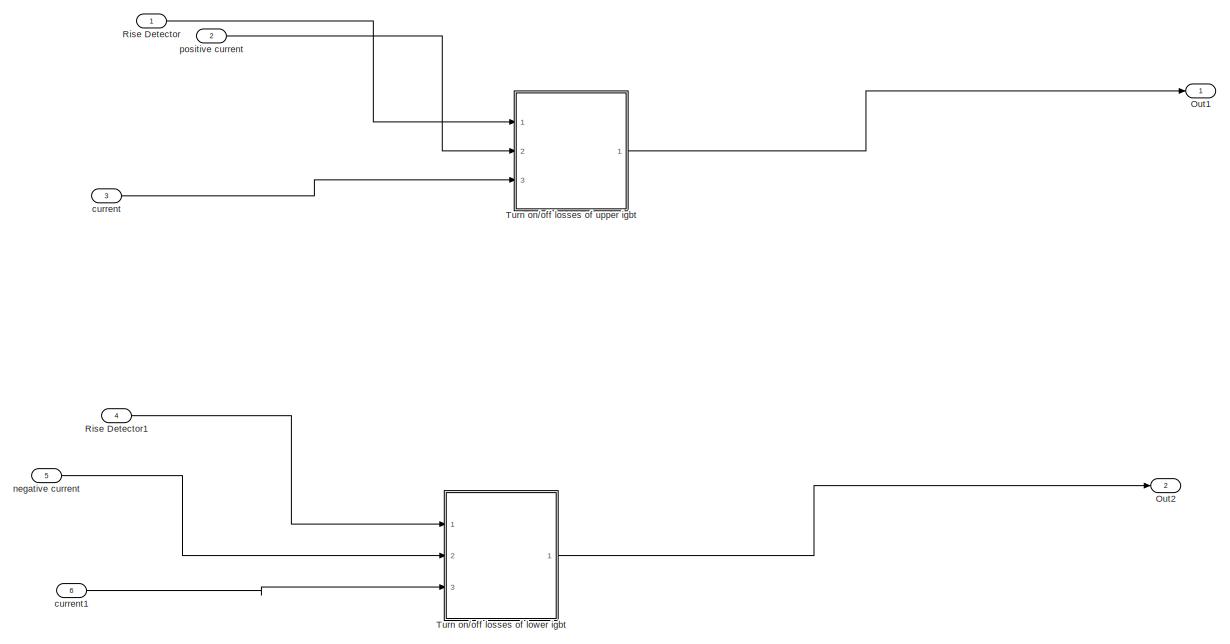
[diagram: root canvas - part 1/2, left side, full height]
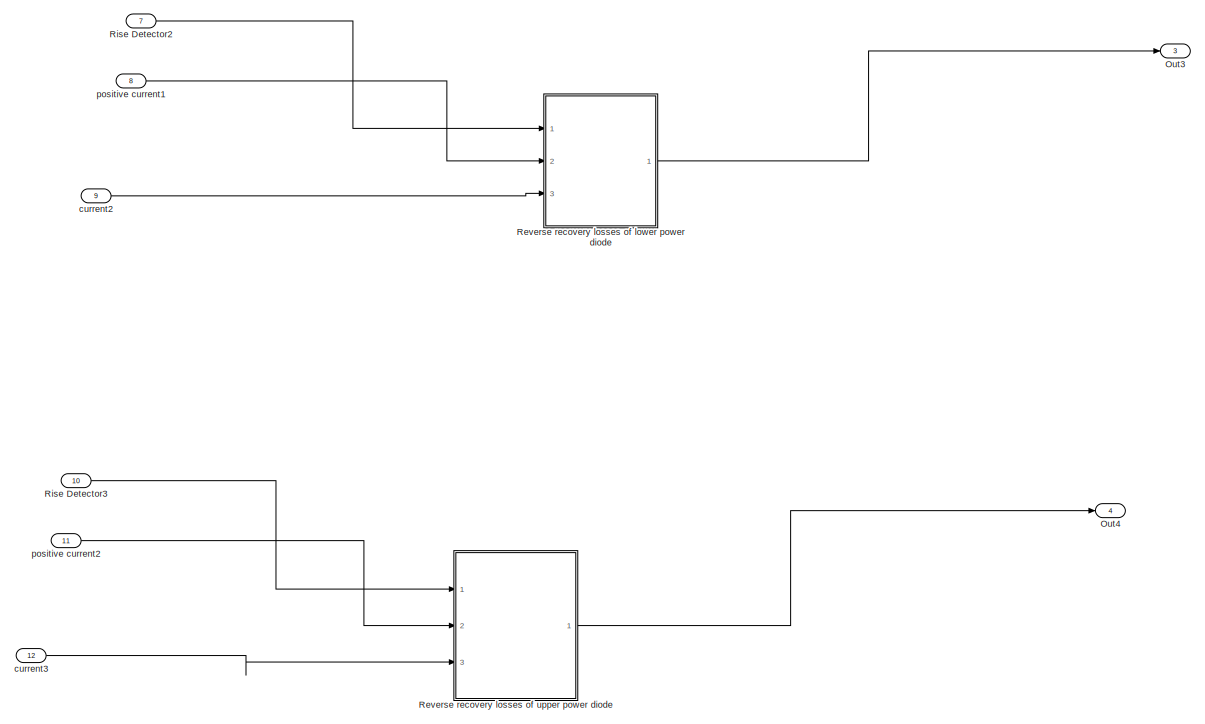
[diagram: root canvas - part 2/2, right side, full height]
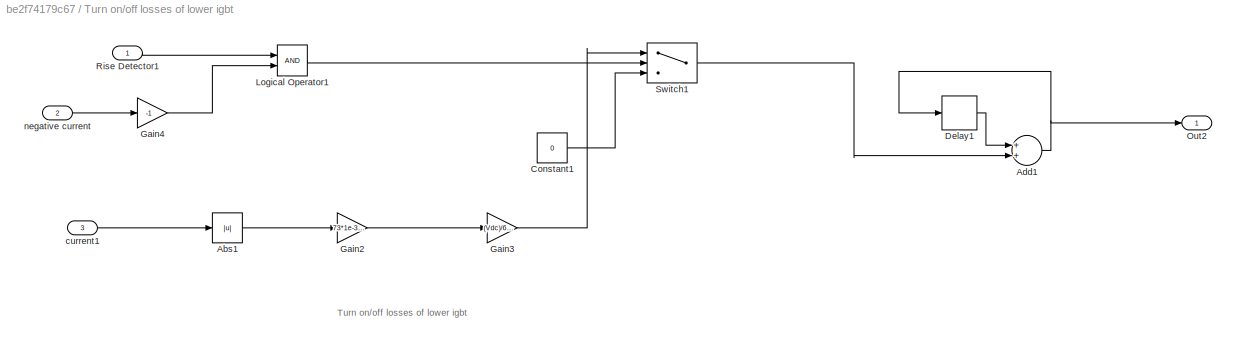
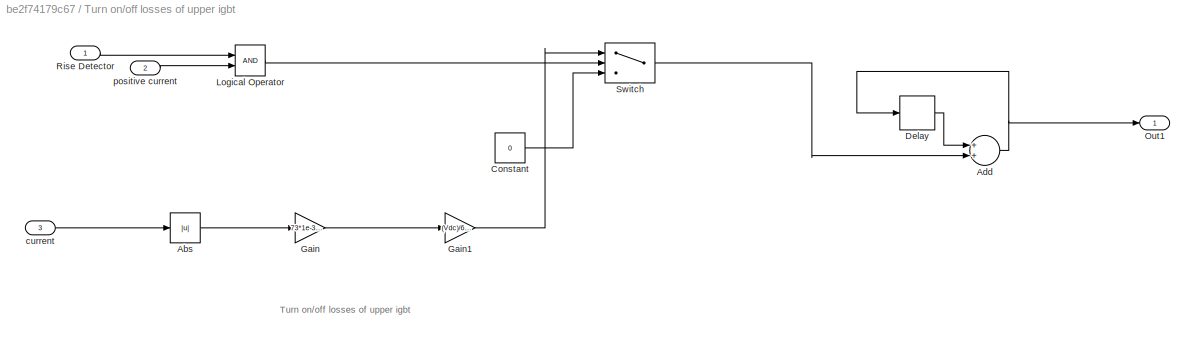
MODEL slx_be2f74179c67
KIND model
CONFIG AbsTol = auto
CONFIG FixedStep = auto
CONFIG MaxStep = auto
CONFIG MinStep = auto
CONFIG RelTol = 1e-3
CONFIG SampleTimeConstraint = Unconstrained
CONFIG Solver = ode45
CONFIG SolverMode = Auto
CONFIG SolverName = ode45
CONFIG StartTime = 0.0
CONFIG StopTime = 10.0
BLOCK [Outport] Out1
  IconDisplay = Port number
BLOCK [Outport] Out2
  IconDisplay = Port number
  Port = 2
BLOCK [Outport] Out3
  IconDisplay = Port number
  Port = 3
BLOCK [Outport] Out4
  IconDisplay = Port number
  Port = 4
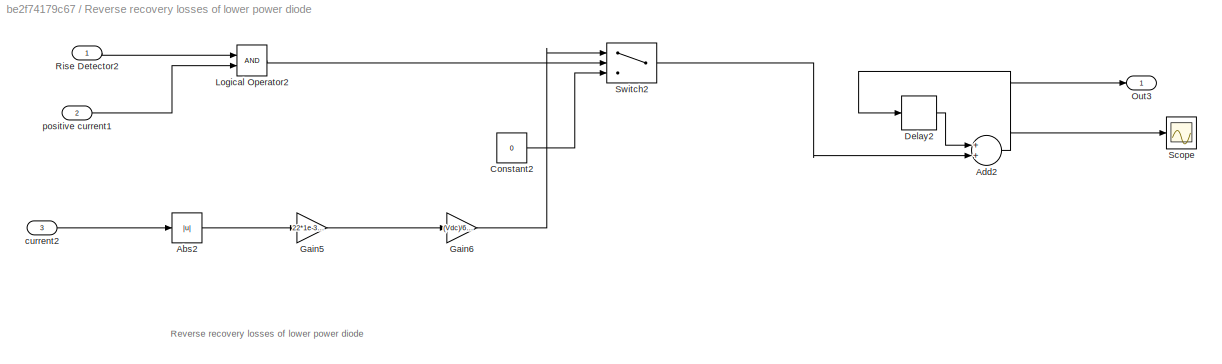
BLOCK [SubSystem] Reverse recovery losses of lower power diode 
  Ports = [3, 1]
  RequestExecContextInheritance = off
BLOCK [Abs] Reverse recovery losses of lower power diode /Abs2
  SaturateOnIntegerOverflow = off
BLOCK [Sum] Reverse recovery losses of lower power diode /Add2
  InputSameDT = off
  OutDataTypeStr = Inherit: Inherit via internal rule
  Ports = [2, 1]
  SaturateOnIntegerOverflow = off
BLOCK [Constant] Reverse recovery losses of lower power diode /Constant2
  Value = 0
BLOCK [Delay] Reverse recovery losses of lower power diode /Delay2
  DelayLength = 1
  InitialCondition = 0
  InputPortMap = u0
  Ports = [1, 1]
BLOCK [Gain] Reverse recovery losses of lower power diode /Gain5
  Gain = 22*1e-3/300
  OutDataTypeStr = Inherit: Inherit via internal rule
  ParamDataTypeStr = Inherit: Inherit via internal rule
  SaturateOnIntegerOverflow = off
BLOCK [Gain] Reverse recovery losses of lower power diode /Gain6
  Gain = (Vdc)/600
  OutDataTypeStr = Inherit: Inherit via internal rule
  ParamDataTypeStr = Inherit: Inherit via internal rule
  SaturateOnIntegerOverflow = off
BLOCK [Logic] Reverse recovery losses of lower power diode /Logical Operator2
  AllPortsSameDT = off
  OutDataTypeStr = boolean
  Ports = [2, 1]
BLOCK [Outport] Reverse recovery losses of lower power diode /Out3
  IconDisplay = Port number
BLOCK [Inport] Reverse recovery losses of lower power diode /Rise Detector2
  IconDisplay = Port number
BLOCK [Scope] Reverse recovery losses of lower power diode /Scope
  Floating = off
  NumInputPorts = 1
  Ports = [1]
BLOCK [Switch] Reverse recovery losses of lower power diode /Switch2
  Criteria = u2 > Threshold
  InputSameDT = off
  SaturateOnIntegerOverflow = off
BLOCK [Inport] Reverse recovery losses of lower power diode /current2
  IconDisplay = Port number
  Port = 3
BLOCK [Inport] Reverse recovery losses of lower power diode /positive current1
  IconDisplay = Port number
  Port = 2
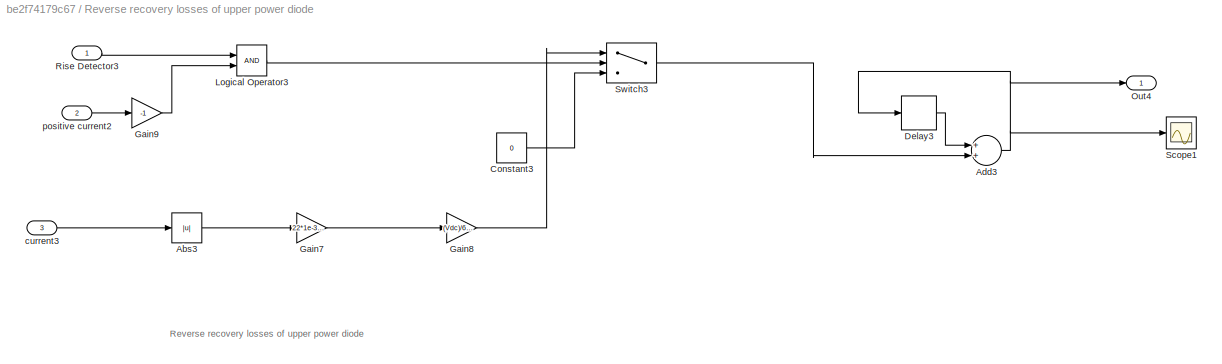
BLOCK [SubSystem] Reverse recovery losses of upper power diode 
  Ports = [3, 1]
  RequestExecContextInheritance = off
BLOCK [Abs] Reverse recovery losses of upper power diode /Abs3
  SaturateOnIntegerOverflow = off
BLOCK [Sum] Reverse recovery losses of upper power diode /Add3
  InputSameDT = off
  OutDataTypeStr = Inherit: Inherit via internal rule
  Ports = [2, 1]
  SaturateOnIntegerOverflow = off
BLOCK [Constant] Reverse recovery losses of upper power diode /Constant3
  Value = 0
BLOCK [Delay] Reverse recovery losses of upper power diode /Delay3
  DelayLength = 1
  InitialCondition = 0
  InputPortMap = u0
  Ports = [1, 1]
BLOCK [Gain] Reverse recovery losses of upper power diode /Gain7
  Gain = 22*1e-3/300
  OutDataTypeStr = Inherit: Inherit via internal rule
  ParamDataTypeStr = Inherit: Inherit via internal rule
  SaturateOnIntegerOverflow = off
BLOCK [Gain] Reverse recovery losses of upper power diode /Gain8
  Gain = (Vdc)/600
  OutDataTypeStr = Inherit: Inherit via internal rule
  ParamDataTypeStr = Inherit: Inherit via internal rule
  SaturateOnIntegerOverflow = off
BLOCK [Gain] Reverse recovery losses of upper power diode /Gain9
  Gain = -1
  OutDataTypeStr = Inherit: Inherit via internal rule
  ParamDataTypeStr = Inherit: Inherit via internal rule
  SaturateOnIntegerOverflow = off
BLOCK [Logic] Reverse recovery losses of upper power diode /Logical Operator3
  AllPortsSameDT = off
  OutDataTypeStr = boolean
  Ports = [2, 1]
BLOCK [Outport] Reverse recovery losses of upper power diode /Out4
  IconDisplay = Port number
BLOCK [Inport] Reverse recovery losses of upper power diode /Rise Detector3
  IconDisplay = Port number
BLOCK [Scope] Reverse recovery losses of upper power diode /Scope1
  Floating = off
  NumInputPorts = 1
  Ports = [1]
  SaveName = ScopeData1
BLOCK [Switch] Reverse recovery losses of upper power diode /Switch3
  Criteria = u2 > Threshold
  InputSameDT = off
  SaturateOnIntegerOverflow = off
BLOCK [Inport] Reverse recovery losses of upper power diode /current3
  IconDisplay = Port number
  Port = 3
BLOCK [Inport] Reverse recovery losses of upper power diode /positive current2
  IconDisplay = Port number
  Port = 2
BLOCK [Inport] Rise Detector
  IconDisplay = Port number
BLOCK [Inport] Rise Detector1
  IconDisplay = Port number
  Port = 4
BLOCK [Inport] Rise Detector2
  IconDisplay = Port number
  Port = 7
BLOCK [Inport] Rise Detector3
  IconDisplay = Port number
  Port = 10
BLOCK [SubSystem] Turn on//off losses of lower igbt 
  Ports = [3, 1]
  RequestExecContextInheritance = off
BLOCK [Abs] Turn on//off losses of lower igbt /Abs1
  SaturateOnIntegerOverflow = off
BLOCK [Sum] Turn on//off losses of lower igbt /Add1
  InputSameDT = off
  OutDataTypeStr = Inherit: Inherit via internal rule
  Ports = [2, 1]
  SaturateOnIntegerOverflow = off
BLOCK [Constant] Turn on//off losses of lower igbt /Constant1
  Value = 0
BLOCK [Delay] Turn on//off losses of lower igbt /Delay1
  DelayLength = 1
  InitialCondition = 0
  InputPortMap = u0
  Ports = [1, 1]
BLOCK [Gain] Turn on//off losses of lower igbt /Gain2
  Gain = 73*1e-3/300
  OutDataTypeStr = Inherit: Inherit via internal rule
  ParamDataTypeStr = Inherit: Inherit via internal rule
  SaturateOnIntegerOverflow = off
BLOCK [Gain] Turn on//off losses of lower igbt /Gain3
  Gain = (Vdc)/600
  OutDataTypeStr = Inherit: Inherit via internal rule
  ParamDataTypeStr = Inherit: Inherit via internal rule
  SaturateOnIntegerOverflow = off
BLOCK [Gain] Turn on//off losses of lower igbt /Gain4
  Gain = -1
  OutDataTypeStr = Inherit: Inherit via internal rule
  ParamDataTypeStr = Inherit: Inherit via internal rule
  SaturateOnIntegerOverflow = off
BLOCK [Logic] Turn on//off losses of lower igbt /Logical Operator1
  AllPortsSameDT = off
  OutDataTypeStr = boolean
  Ports = [2, 1]
BLOCK [Outport] Turn on//off losses of lower igbt /Out2
  IconDisplay = Port number
BLOCK [Inport] Turn on//off losses of lower igbt /Rise Detector1
  IconDisplay = Port number
BLOCK [Switch] Turn on//off losses of lower igbt /Switch1
  Criteria = u2 > Threshold
  InputSameDT = off
  SaturateOnIntegerOverflow = off
BLOCK [Inport] Turn on//off losses of lower igbt /current1
  IconDisplay = Port number
  Port = 3
BLOCK [Inport] Turn on//off losses of lower igbt /negative current
  IconDisplay = Port number
  Port = 2
BLOCK [SubSystem] Turn on//off losses of upper igbt 
  Ports = [3, 1]
  RequestExecContextInheritance = off
BLOCK [Abs] Turn on//off losses of upper igbt /Abs
  SaturateOnIntegerOverflow = off
BLOCK [Sum] Turn on//off losses of upper igbt /Add
  InputSameDT = off
  OutDataTypeStr = Inherit: Inherit via internal rule
  Ports = [2, 1]
  SaturateOnIntegerOverflow = off
BLOCK [Constant] Turn on//off losses of upper igbt /Constant
  Value = 0
BLOCK [Delay] Turn on//off losses of upper igbt /Delay
  DelayLength = 1
  InitialCondition = 0
  InputPortMap = u0
  Ports = [1, 1]
BLOCK [Gain] Turn on//off losses of upper igbt /Gain
  Gain = 73*1e-3/300
  OutDataTypeStr = Inherit: Inherit via internal rule
  ParamDataTypeStr = Inherit: Inherit via internal rule
  SaturateOnIntegerOverflow = off
BLOCK [Gain] Turn on//off losses of upper igbt /Gain1
  Gain = (Vdc)/600
  OutDataTypeStr = Inherit: Inherit via internal rule
  ParamDataTypeStr = Inherit: Inherit via internal rule
  SaturateOnIntegerOverflow = off
BLOCK [Logic] Turn on//off losses of upper igbt /Logical Operator
  AllPortsSameDT = off
  OutDataTypeStr = boolean
  Ports = [2, 1]
BLOCK [Outport] Turn on//off losses of upper igbt /Out1
  IconDisplay = Port number
BLOCK [Inport] Turn on//off losses of upper igbt /Rise Detector
  IconDisplay = Port number
BLOCK [Switch] Turn on//off losses of upper igbt /Switch
  Criteria = u2 > Threshold
  InputSameDT = off
  SaturateOnIntegerOverflow = off
BLOCK [Inport] Turn on//off losses of upper igbt /current
  IconDisplay = Port number
  Port = 3
BLOCK [Inport] Turn on//off losses of upper igbt /positive current
  IconDisplay = Port number
  Port = 2
BLOCK [Inport] current
  IconDisplay = Port number
  Port = 3
BLOCK [Inport] current1
  IconDisplay = Port number
  Port = 6
BLOCK [Inport] current2
  IconDisplay = Port number
  Port = 9
BLOCK [Inport] current3
  IconDisplay = Port number
  Port = 12
BLOCK [Inport] negative current
  IconDisplay = Port number
  Port = 5
BLOCK [Inport] positive current
  IconDisplay = Port number
  Port = 2
BLOCK [Inport] positive current1
  IconDisplay = Port number
  Port = 8
BLOCK [Inport] positive current2
  IconDisplay = Port number
  Port = 11
ANNOTATION Reverse recovery losses of lower power diode : Reverse recovery losses of lower power diode
ANNOTATION Reverse recovery losses of upper power diode : Reverse recovery losses of upper power diode
ANNOTATION Turn on//off losses of lower igbt : Turn on/off losses of lower igbt
ANNOTATION Turn on//off losses of upper igbt : Turn on/off losses of upper igbt
LINE Reverse recovery losses of lower power diode /Abs2:1 -> Reverse recovery losses of lower power diode /Gain5:1
NET Reverse recovery losses of lower power diode /Add2:1 -> Reverse recovery losses of lower power diode /Delay2:1, Reverse recovery losses of lower power diode /Out3:1, Reverse recovery losses of lower power diode /Scope:1
LINE Reverse recovery losses of lower power diode /Constant2:1 -> Reverse recovery losses of lower power diode /Switch2:3
LINE Reverse recovery losses of lower power diode /Delay2:1 -> Reverse recovery losses of lower power diode /Add2:1
LINE Reverse recovery losses of lower power diode /Gain5:1 -> Reverse recovery losses of lower power diode /Gain6:1
LINE Reverse recovery losses of lower power diode /Gain6:1 -> Reverse recovery losses of lower power diode /Switch2:1
LINE Reverse recovery losses of lower power diode /Logical Operator2:1 -> Reverse recovery losses of lower power diode /Switch2:2
LINE Reverse recovery losses of lower power diode /Rise Detector2:1 -> Reverse recovery losses of lower power diode /Logical Operator2:1
LINE Reverse recovery losses of lower power diode /Switch2:1 -> Reverse recovery losses of lower power diode /Add2:2
LINE Reverse recovery losses of lower power diode /current2:1 -> Reverse recovery losses of lower power diode /Abs2:1
LINE Reverse recovery losses of lower power diode /positive current1:1 -> Reverse recovery losses of lower power diode /Logical Operator2:2
LINE Reverse recovery losses of lower power diode :1 -> Out3:1
LINE Reverse recovery losses of upper power diode /Abs3:1 -> Reverse recovery losses of upper power diode /Gain7:1
NET Reverse recovery losses of upper power diode /Add3:1 -> Reverse recovery losses of upper power diode /Delay3:1, Reverse recovery losses of upper power diode /Out4:1, Reverse recovery losses of upper power diode /Scope1:1
LINE Reverse recovery losses of upper power diode /Constant3:1 -> Reverse recovery losses of upper power diode /Switch3:3
LINE Reverse recovery losses of upper power diode /Delay3:1 -> Reverse recovery losses of upper power diode /Add3:1
LINE Reverse recovery losses of upper power diode /Gain7:1 -> Reverse recovery losses of upper power diode /Gain8:1
LINE Reverse recovery losses of upper power diode /Gain8:1 -> Reverse recovery losses of upper power diode /Switch3:1
LINE Reverse recovery losses of upper power diode /Gain9:1 -> Reverse recovery losses of upper power diode /Logical Operator3:2
LINE Reverse recovery losses of upper power diode /Logical Operator3:1 -> Reverse recovery losses of upper power diode /Switch3:2
LINE Reverse recovery losses of upper power diode /Rise Detector3:1 -> Reverse recovery losses of upper power diode /Logical Operator3:1
LINE Reverse recovery losses of upper power diode /Switch3:1 -> Reverse recovery losses of upper power diode /Add3:2
LINE Reverse recovery losses of upper power diode /current3:1 -> Reverse recovery losses of upper power diode /Abs3:1
LINE Reverse recovery losses of upper power diode /positive current2:1 -> Reverse recovery losses of upper power diode /Gain9:1
LINE Reverse recovery losses of upper power diode :1 -> Out4:1
LINE Rise Detector1:1 -> Turn on//off losses of lower igbt :1
LINE Rise Detector2:1 -> Reverse recovery losses of lower power diode :1
LINE Rise Detector3:1 -> Reverse recovery losses of upper power diode :1
LINE Rise Detector:1 -> Turn on//off losses of upper igbt :1
LINE Turn on//off losses of lower igbt /Abs1:1 -> Turn on//off losses of lower igbt /Gain2:1
NET Turn on//off losses of lower igbt /Add1:1 -> Turn on//off losses of lower igbt /Delay1:1, Turn on//off losses of lower igbt /Out2:1
LINE Turn on//off losses of lower igbt /Constant1:1 -> Turn on//off losses of lower igbt /Switch1:3
LINE Turn on//off losses of lower igbt /Delay1:1 -> Turn on//off losses of lower igbt /Add1:1
LINE Turn on//off losses of lower igbt /Gain2:1 -> Turn on//off losses of lower igbt /Gain3:1
LINE Turn on//off losses of lower igbt /Gain3:1 -> Turn on//off losses of lower igbt /Switch1:1
LINE Turn on//off losses of lower igbt /Gain4:1 -> Turn on//off losses of lower igbt /Logical Operator1:2
LINE Turn on//off losses of lower igbt /Logical Operator1:1 -> Turn on//off losses of lower igbt /Switch1:2
LINE Turn on//off losses of lower igbt /Rise Detector1:1 -> Turn on//off losses of lower igbt /Logical Operator1:1
LINE Turn on//off losses of lower igbt /Switch1:1 -> Turn on//off losses of lower igbt /Add1:2
LINE Turn on//off losses of lower igbt /current1:1 -> Turn on//off losses of lower igbt /Abs1:1
LINE Turn on//off losses of lower igbt /negative current:1 -> Turn on//off losses of lower igbt /Gain4:1
LINE Turn on//off losses of lower igbt :1 -> Out2:1
LINE Turn on//off losses of upper igbt /Abs:1 -> Turn on//off losses of upper igbt /Gain:1
NET Turn on//off losses of upper igbt /Add:1 -> Turn on//off losses of upper igbt /Delay:1, Turn on//off losses of upper igbt /Out1:1
LINE Turn on//off losses of upper igbt /Constant:1 -> Turn on//off losses of upper igbt /Switch:3
LINE Turn on//off losses of upper igbt /Delay:1 -> Turn on//off losses of upper igbt /Add:1
LINE Turn on//off losses of upper igbt /Gain1:1 -> Turn on//off losses of upper igbt /Switch:1
LINE Turn on//off losses of upper igbt /Gain:1 -> Turn on//off losses of upper igbt /Gain1:1
LINE Turn on//off losses of upper igbt /Logical Operator:1 -> Turn on//off losses of upper igbt /Switch:2
LINE Turn on//off losses of upper igbt /Rise Detector:1 -> Turn on//off losses of upper igbt /Logical Operator:1
LINE Turn on//off losses of upper igbt /Switch:1 -> Turn on//off losses of upper igbt /Add:2
LINE Turn on//off losses of upper igbt /current:1 -> Turn on//off losses of upper igbt /Abs:1
LINE Turn on//off losses of upper igbt /positive current:1 -> Turn on//off losses of upper igbt /Logical Operator:2
LINE Turn on//off losses of upper igbt :1 -> Out1:1
LINE current1:1 -> Turn on//off losses of lower igbt :3
LINE current2:1 -> Reverse recovery losses of lower power diode :3
LINE current3:1 -> Reverse recovery losses of upper power diode :3
LINE current:1 -> Turn on//off losses of upper igbt :3
LINE negative current:1 -> Turn on//off losses of lower igbt :2
LINE positive current1:1 -> Reverse recovery losses of lower power diode :2
LINE positive current2:1 -> Reverse recovery losses of upper power diode :2
LINE positive current:1 -> Turn on//off losses of upper igbt :2
note: NET lines group one-source signal fan-out (src -> all destinations, sorted); 1:1 wires keep LINE
